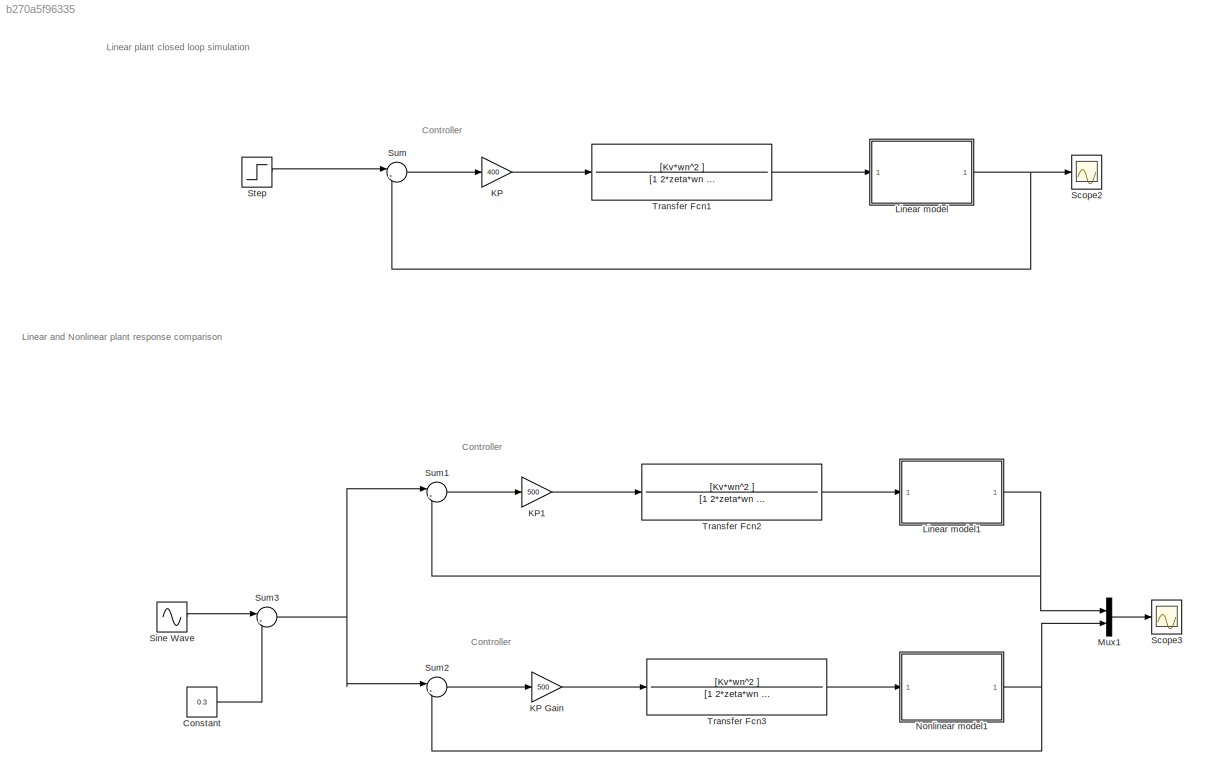
MODEL slx_b270a5f96335
KIND model
CONFIG AbsTol = auto
CONFIG EnableMultiTasking = off
CONFIG FixedStep = auto
CONFIG MaxStep = auto
CONFIG MinStep = auto
CONFIG RelTol = 1e-3
CONFIG SampleTimeConstraint = Unconstrained
CONFIG Solver = VariableStepAuto
CONFIG SolverName = VariableStepAuto
CONFIG StartTime = 0.0
CONFIG StopTime = 2
BLOCK [Constant] Constant
  Value = 0.3
BLOCK [Gain] KP
  Gain = 400
  OutDataTypeStr = Inherit: Inherit via internal rule
  ParamDataTypeStr = Inherit: Inherit via internal rule
  SaturateOnIntegerOverflow = off
BLOCK [Gain] KP Gain
  Gain = 500
  OutDataTypeStr = Inherit: Inherit via internal rule
  ParamDataTypeStr = Inherit: Inherit via internal rule
  SaturateOnIntegerOverflow = off
BLOCK [Gain] KP1
  Gain = 500
  OutDataTypeStr = Inherit: Inherit via internal rule
  ParamDataTypeStr = Inherit: Inherit via internal rule
  SaturateOnIntegerOverflow = off
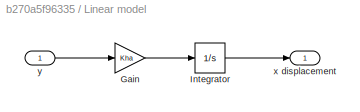
BLOCK [SubSystem] Linear model
  Ports = [1, 1]
  RequestExecContextInheritance = off
BLOCK [Gain] Linear model/Gain
  Gain = Kha
  OutDataTypeStr = Inherit: Inherit via internal rule
  ParamDataTypeStr = Inherit: Inherit via internal rule
  SaturateOnIntegerOverflow = off
BLOCK [Integrator] Linear model/Integrator
  InitialCondition = 0.3
  Ports = [1, 1]
BLOCK [Outport] Linear model/x displacement
  IconDisplay = Port number
BLOCK [Inport] Linear model/y
  IconDisplay = Port number
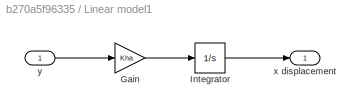
BLOCK [SubSystem] Linear model1
  Ports = [1, 1]
  RequestExecContextInheritance = off
BLOCK [Gain] Linear model1/Gain
  Gain = Kha
  OutDataTypeStr = Inherit: Inherit via internal rule
  ParamDataTypeStr = Inherit: Inherit via internal rule
  SaturateOnIntegerOverflow = off
BLOCK [Integrator] Linear model1/Integrator
  InitialCondition = 0.3
  Ports = [1, 1]
BLOCK [Outport] Linear model1/x displacement
  IconDisplay = Port number
BLOCK [Inport] Linear model1/y
  IconDisplay = Port number
BLOCK [Mux] Mux1
  DisplayOption = bar
  Inputs = 2
  Ports = [2, 1]
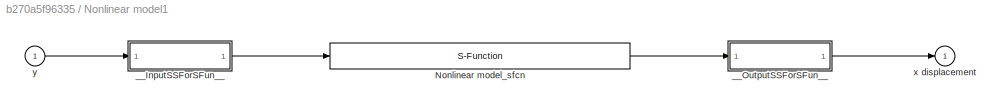
BLOCK [SubSystem] Nonlinear model1
  Ports = [1, 1]
  RequestExecContextInheritance = off
BLOCK [S-Function] Nonlinear model1/Nonlinear model_sfcn
  CopyFcn = if ~strcmp(get_param(gcb,'Linkstatus'),'none') && ...\n~strcmp(get_param(gcb,'Linkstatus'),'implicit')      \n  set_param(gcb,'LinkStatus','none');                \nend
  EnableBusSupport = off
  FunctionName = Nonlinear_sf
  Ports = [1, 1]
  SFcnIsStateOwnerBlock = off
  SFunctionDeploymentMode = off
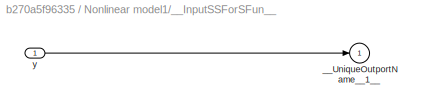
BLOCK [SubSystem] Nonlinear model1/__InputSSForSFun__
  PermitHierarchicalResolution = ExplicitOnly
  Ports = [1, 1]
  RequestExecContextInheritance = off
BLOCK [Outport] Nonlinear model1/__InputSSForSFun__/__UniqueOutportName__1__
  IconDisplay = Port number
BLOCK [Inport] Nonlinear model1/__InputSSForSFun__/y
  IconDisplay = Port number
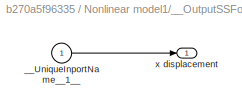
BLOCK [SubSystem] Nonlinear model1/__OutputSSForSFun__
  PermitHierarchicalResolution = ExplicitOnly
  Ports = [1, 1]
  RequestExecContextInheritance = off
BLOCK [Inport] Nonlinear model1/__OutputSSForSFun__/__UniqueInportName__1__
  IconDisplay = Port number
BLOCK [Outport] Nonlinear model1/__OutputSSForSFun__/x displacement
  IconDisplay = Port number
BLOCK [Outport] Nonlinear model1/x displacement
  IconDisplay = Port number
BLOCK [Inport] Nonlinear model1/y
  IconDisplay = Port number
BLOCK [Scope] Scope2
  Floating = off
  NumInputPorts = 1
  Ports = [1]
  ScopeSpecificationString = Simulink.scopes.TimeScopeBlockCfg('CurrentConfiguration', extmgr.ConfigurationSet(extmgr.Configuration('Core','General UI',true),extmgr.Configuration('Core','Source UI',true),extmgr.Configuration('Sources','WiredSimulink',true,'DataLoggingVariableName','ScopeData1'),extmgr.Configuration('Visuals','Time Domain',true,'SerializedDisplays',{struct('MinYLimReal','0.28125','MaxYLimReal','0.46875','YLabe...<+1421ch>
BLOCK [Scope] Scope3
  Floating = off
  NumInputPorts = 1
  Ports = [1]
  ScopeSpecificationString = Simulink.scopes.TimeScopeBlockCfg('CurrentConfiguration', extmgr.ConfigurationSet(extmgr.Configuration('Core','General UI',true),extmgr.Configuration('Core','Source UI',true),extmgr.Configuration('Sources','WiredSimulink',true),extmgr.Configuration('Visuals','Time Domain',true,'SerializedDisplays',{struct('MinYLimReal','0.17147','MaxYLimReal','0.43694','YLabelReal','','MinYLimMag','0.17147','MaxYL...<+1400ch>
BLOCK [Sin] Sine Wave
  Amplitude = 0.15
  Frequency = 12.57
  Ports = [0, 1]
  VectorParams1D = off
BLOCK [Step] Step
  After = 0.45
  Before = 0.3
  SampleTime = 0
  Time = 0
BLOCK [Sum] Sum
  IconShape = round
  InputSameDT = off
  Inputs = |+-
  OutDataTypeStr = Inherit: Inherit via internal rule
  Ports = [2, 1]
  SaturateOnIntegerOverflow = off
BLOCK [Sum] Sum1
  IconShape = round
  InputSameDT = off
  Inputs = |+-
  OutDataTypeStr = Inherit: Inherit via internal rule
  Ports = [2, 1]
  SaturateOnIntegerOverflow = off
BLOCK [Sum] Sum2
  IconShape = round
  InputSameDT = off
  Inputs = |+-
  OutDataTypeStr = Inherit: Inherit via internal rule
  Ports = [2, 1]
  SaturateOnIntegerOverflow = off
BLOCK [Sum] Sum3
  IconShape = round
  InputSameDT = off
  Inputs = |++
  OutDataTypeStr = Inherit: Inherit via internal rule
  Ports = [2, 1]
  SaturateOnIntegerOverflow = off
BLOCK [TransferFcn] Transfer Fcn1
  Denominator = [1 2*zeta*wn wn^2]
  Numerator = [Kv*wn^2 ]
BLOCK [TransferFcn] Transfer Fcn2
  Denominator = [1 2*zeta*wn wn^2]
  Numerator = [Kv*wn^2 ]
BLOCK [TransferFcn] Transfer Fcn3
  Denominator = [1 2*zeta*wn wn^2]
  Numerator = [Kv*wn^2 ]
ANNOTATION (root): Controller
ANNOTATION (root): Linear and Nonlinear plant response comparison
ANNOTATION (root): Linear plant closed loop simulation
LINE Constant:1 -> Sum3:2
LINE KP Gain:1 -> Transfer Fcn3:1
LINE KP1:1 -> Transfer Fcn2:1
LINE KP:1 -> Transfer Fcn1:1
LINE Linear model/Gain:1 -> Linear model/Integrator:1
LINE Linear model/Integrator:1 -> Linear model/x displacement:1
LINE Linear model/y:1 -> Linear model/Gain:1
LINE Linear model1/Gain:1 -> Linear model1/Integrator:1
LINE Linear model1/Integrator:1 -> Linear model1/x displacement:1
LINE Linear model1/y:1 -> Linear model1/Gain:1
NET Linear model1:1 -> Mux1:1, Sum1:2
NET Linear model:1 -> Scope2:1, Sum:2
LINE Mux1:1 -> Scope3:1
LINE Nonlinear model1/Nonlinear model_sfcn:1 -> Nonlinear model1/__OutputSSForSFun__:1
LINE Nonlinear model1/__InputSSForSFun__/y:1 -> Nonlinear model1/__InputSSForSFun__/__UniqueOutportName__1__:1
LINE Nonlinear model1/__InputSSForSFun__:1 -> Nonlinear model1/Nonlinear model_sfcn:1
LINE Nonlinear model1/__OutputSSForSFun__/__UniqueInportName__1__:1 -> Nonlinear model1/__OutputSSForSFun__/x displacement:1
LINE Nonlinear model1/__OutputSSForSFun__:1 -> Nonlinear model1/x displacement:1
LINE Nonlinear model1/y:1 -> Nonlinear model1/__InputSSForSFun__:1
NET Nonlinear model1:1 -> Mux1:2, Sum2:2
LINE Sine Wave:1 -> Sum3:1
LINE Step:1 -> Sum:1
LINE Sum1:1 -> KP1:1
LINE Sum2:1 -> KP Gain:1
NET Sum3:1 -> Sum1:1, Sum2:1
LINE Sum:1 -> KP:1
LINE Transfer Fcn1:1 -> Linear model:1
LINE Transfer Fcn2:1 -> Linear model1:1
LINE Transfer Fcn3:1 -> Nonlinear model1:1
note: NET lines group one-source signal fan-out (src -> all destinations, sorted); 1:1 wires keep LINE
